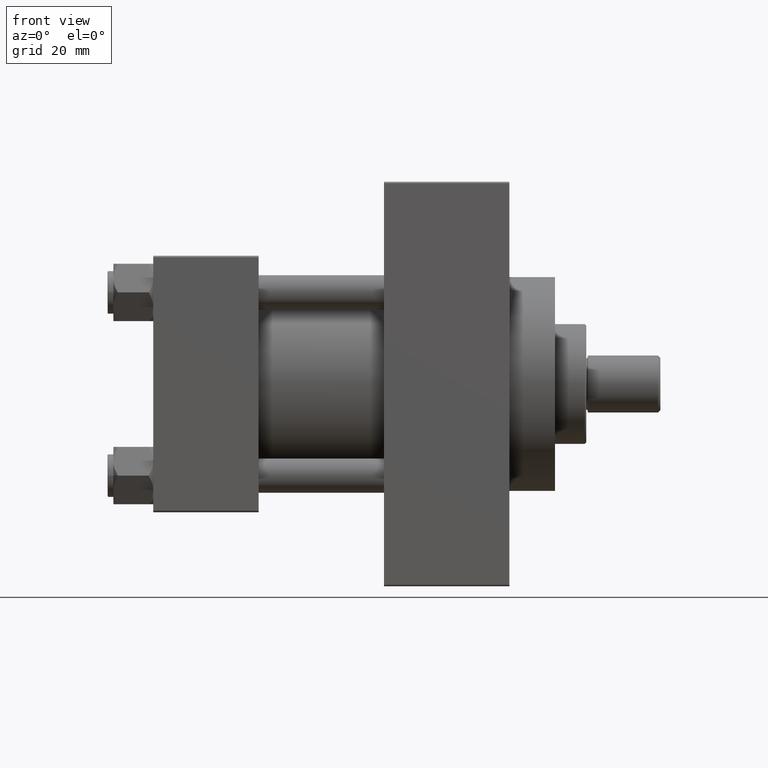
[diagram: clean part render]
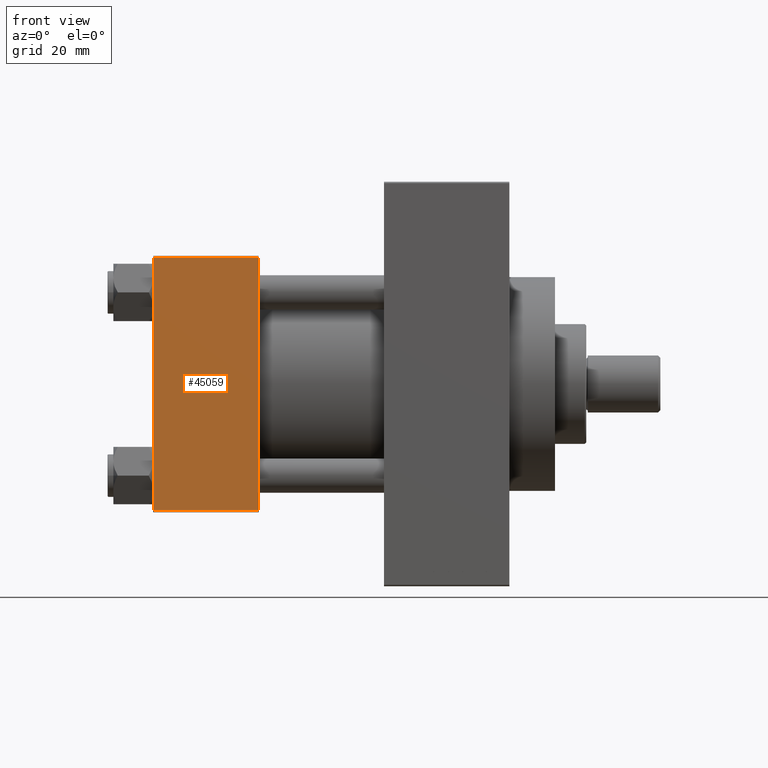
[diagram: same view with one face highlighted and labeled with its STEP entity id]
A machine part, front view. The second image highlights one B-rep face of the part: STEP entity #45059.
In plain terms, the highlighted planar face has unit normal (0, 1, 0).
Its self-contained STEP definition (entity closure, byte-faithful):
#1160 = LINE ( 'NONE', #45257, #40898 ) ;
#2512 = CARTESIAN_POINT ( 'NONE',  ( 37.00000000000000000, -45.00000000000000711, 45.00000000000000000 ) ) ;
#2746 = DIRECTION ( 'NONE',  ( -0.000000000000000000, 1.000000000000000000, 7.709882115452478166E-17 ) ) ;
#4426 = CARTESIAN_POINT ( 'NONE',  ( 37.00000000000000000, -45.00000000000000711, 45.00000000000000000 ) ) ;
#5242 = CARTESIAN_POINT ( 'NONE',  ( 0.000000000000000000, -45.00000000000000000, -44.49999999999995737 ) ) ;
#6247 = VECTOR ( 'NONE', #35615, 1000.000000000000000 ) ;
#6289 = CARTESIAN_POINT ( 'NONE',  ( 37.00000000000000000, -45.00000000000000000, -44.49999999999995737 ) ) ;
#7004 = EDGE_CURVE ( 'NONE', #21665, #37420, #11065, .T. ) ;
#7788 = EDGE_CURVE ( 'NONE', #44725, #31287, #1160, .T. ) ;
#9339 = EDGE_LOOP ( 'NONE', ( #38736, #39380, #18268, #38557 ) ) ;
#10231 = FACE_OUTER_BOUND ( 'NONE', #9339, .T. ) ;
#11065 = LINE ( 'NONE', #43100, #6247 ) ;
#15826 = VECTOR ( 'NONE', #17361, 1000.000000000000000 ) ;
#16994 = AXIS2_PLACEMENT_3D ( 'NONE', #2512, #2746, #17922 ) ;
#17361 = DIRECTION ( 'NONE',  ( 0.000000000000000000, 7.709882115452476934E-17, -1.000000000000000000 ) ) ;
#17922 = DIRECTION ( 'NONE',  ( 0.000000000000000000, -7.709882115452478166E-17, 1.000000000000000000 ) ) ;
#18268 = ORIENTED_EDGE ( 'NONE', *, *, #46008, .F. ) ;
#21665 = VERTEX_POINT ( 'NONE', #43739 ) ;
#22225 = EDGE_CURVE ( 'NONE', #37420, #44725, #46772, .T. ) ;
#25324 = CARTESIAN_POINT ( 'NONE',  ( 0.000000000000000000, -45.00000000000000711, 45.00000000000000000 ) ) ;
#26361 = LINE ( 'NONE', #4426, #44646 ) ;
#31287 = VERTEX_POINT ( 'NONE', #6289 ) ;
#35615 = DIRECTION ( 'NONE',  ( -1.000000000000000000, 0.000000000000000000, 0.000000000000000000 ) ) ;
#37420 = VERTEX_POINT ( 'NONE', #44657 ) ;
#38557 = ORIENTED_EDGE ( 'NONE', *, *, #7004, .T. ) ;
#38736 = ORIENTED_EDGE ( 'NONE', *, *, #22225, .T. ) ;
#39380 = ORIENTED_EDGE ( 'NONE', *, *, #7788, .T. ) ;
#40098 = PLANE ( 'NONE',  #16994 ) ;
#40898 = VECTOR ( 'NONE', #45019, 1000.000000000000000 ) ;
#41046 = DIRECTION ( 'NONE',  ( 0.000000000000000000, 7.709882115452476934E-17, -1.000000000000000000 ) ) ;
#43100 = CARTESIAN_POINT ( 'NONE',  ( 37.00000000000000000, -45.00000000000000711, 44.49999999999997158 ) ) ;
#43739 = CARTESIAN_POINT ( 'NONE',  ( 37.00000000000000000, -45.00000000000000711, 44.49999999999997158 ) ) ;
#44646 = VECTOR ( 'NONE', #41046, 1000.000000000000000 ) ;
#44657 = CARTESIAN_POINT ( 'NONE',  ( 0.000000000000000000, -45.00000000000000711, 44.49999999999997158 ) ) ;
#44725 = VERTEX_POINT ( 'NONE', #5242 ) ;
#45019 = DIRECTION ( 'NONE',  ( 1.000000000000000000, 0.000000000000000000, 0.000000000000000000 ) ) ;
#45059 = ADVANCED_FACE ( 'NONE', ( #10231 ), #40098, .F. ) ;
#45257 = CARTESIAN_POINT ( 'NONE',  ( 37.00000000000000000, -45.00000000000000000, -44.49999999999998579 ) ) ;
#46008 = EDGE_CURVE ( 'NONE', #21665, #31287, #26361, .T. ) ;
#46772 = LINE ( 'NONE', #25324, #15826 ) ;